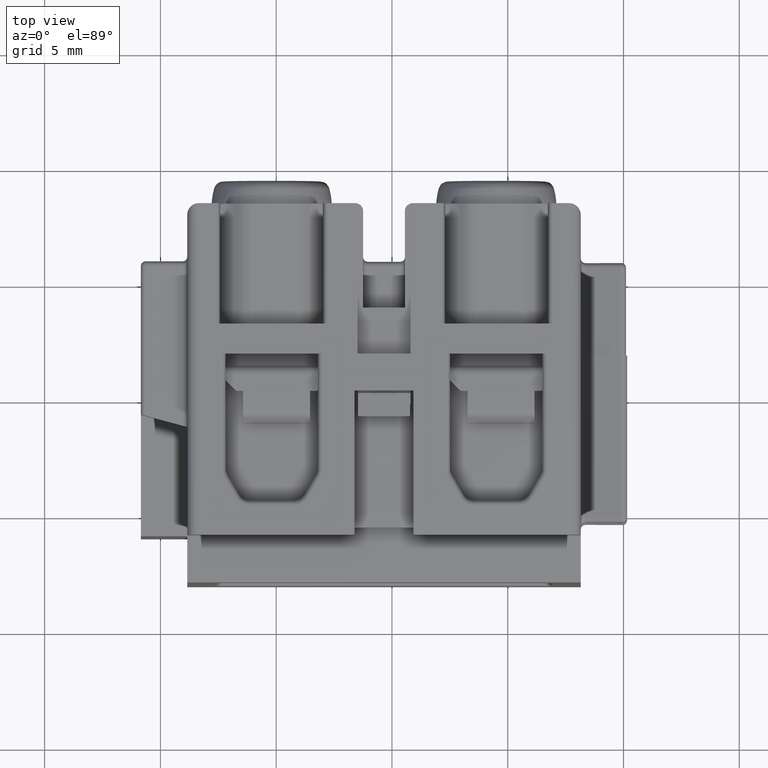
[diagram: clean part render]
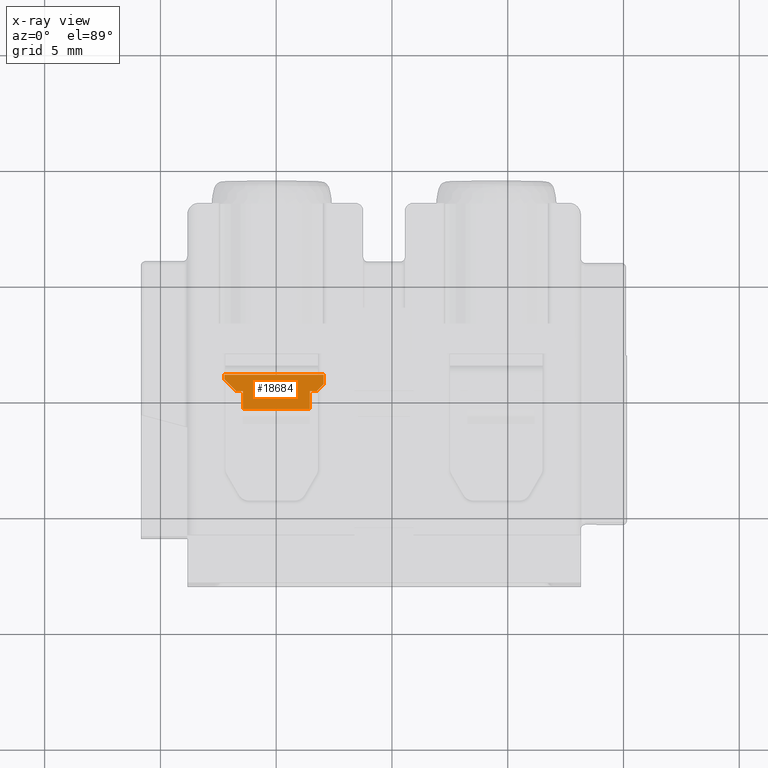
[diagram: x-ray — body ghosted, one internal face saturated and labeled with its STEP entity id]
A machine part, top view, then the same camera in x-ray: the body is ghosted and one INTERNAL B-rep face — a face not visible from any outside direction — is saturated and labeled: STEP entity #18684.
In plain terms, the highlighted planar face has unit normal (0, 0, 1).
Its self-contained STEP definition (entity closure, byte-faithful):
#4030 = ORIENTED_EDGE ( 'NONE', *, *, #18966, .F. ) ;
#4039 = ORIENTED_EDGE ( 'NONE', *, *, #18957, .F. ) ;
#4049 = ORIENTED_EDGE ( 'NONE', *, *, #18910, .T. ) ;
#4051 = ORIENTED_EDGE ( 'NONE', *, *, #19070, .F. ) ;
#4060 = ORIENTED_EDGE ( 'NONE', *, *, #18939, .F. ) ;
#4063 = ORIENTED_EDGE ( 'NONE', *, *, #18946, .F. ) ;
#4473 = AXIS2_PLACEMENT_3D ( 'NONE', #15441, #15443, #15463 ) ;
#4660 = VECTOR ( 'NONE', #5752, 1000.000000000000000 ) ;
#4717 = VECTOR ( 'NONE', #5856, 1000.000000000000000 ) ;
#4718 = VECTOR ( 'NONE', #5867, 1000.000000000000000 ) ;
#4720 = VECTOR ( 'NONE', #5885, 1000.000000000000000 ) ;
#4752 = VECTOR ( 'NONE', #5921, 1000.000000000000100 ) ;
#4763 = VECTOR ( 'NONE', #5836, 1000.000000000000000 ) ;
#4779 = VECTOR ( 'NONE', #5009, 1000.000000000000000 ) ;
#4816 = VECTOR ( 'NONE', #5951, 1000.000000000000100 ) ;
#4831 = VECTOR ( 'NONE', #6035, 1000.000000000000000 ) ;
#4832 = VECTOR ( 'NONE', #6037, 1000.000000000000000 ) ;
#5009 = DIRECTION ( 'NONE',  ( 0.0000000000000000000, -1.000000000000000000, 0.0000000000000000000 ) ) ;
#5749 = LINE ( 'NONE', #5757, #4660 ) ;
#5752 = DIRECTION ( 'NONE',  ( -1.000000000000000000, 0.0000000000000000000, 0.0000000000000000000 ) ) ;
#5757 = CARTESIAN_POINT ( 'NONE',  ( 17.05655536988780000, 34.46510758664594900, -3.122838019614685200 ) ) ;
#5811 = CARTESIAN_POINT ( 'NONE',  ( 17.05655536988780000, 35.24963753280820100, -3.122838019614540000 ) ) ;
#5815 = LINE ( 'NONE', #5811, #4763 ) ;
#5816 = CARTESIAN_POINT ( 'NONE',  ( 17.05655536988780000, 35.94963753280804800, -3.122838019614540000 ) ) ;
#5836 = DIRECTION ( 'NONE',  ( 1.000000000000000000, 0.0000000000000000000, 0.0000000000000000000 ) ) ;
#5844 = LINE ( 'NONE', #5816, #4720 ) ;
#5852 = LINE ( 'NONE', #5853, #4718 ) ;
#5853 = CARTESIAN_POINT ( 'NONE',  ( 12.75655536988781900, 35.94963753280804800, -3.122838019614540000 ) ) ;
#5856 = DIRECTION ( 'NONE',  ( 0.0000000000000000000, 1.000000000000000000, 0.0000000000000000000 ) ) ;
#5866 = CARTESIAN_POINT ( 'NONE',  ( 16.45655536988764900, 35.94963753280804800, -3.122838019614540000 ) ) ;
#5867 = DIRECTION ( 'NONE',  ( 0.0000000000000000000, -1.000000000000000000, 0.0000000000000000000 ) ) ;
#5868 = LINE ( 'NONE', #5877, #4752 ) ;
#5876 = LINE ( 'NONE', #5866, #4717 ) ;
#5877 = CARTESIAN_POINT ( 'NONE',  ( 14.80655536988799900, 33.69963753280819700, -3.122838019614540000 ) ) ;
#5885 = DIRECTION ( 'NONE',  ( -1.000000000000000000, 0.0000000000000000000, 0.0000000000000000000 ) ) ;
#5921 = DIRECTION ( 'NONE',  ( 0.7071067811865474600, -0.7071067811865474600, 0.0000000000000000000 ) ) ;
#5935 = LINE ( 'NONE', #5941, #4816 ) ;
#5941 = CARTESIAN_POINT ( 'NONE',  ( 17.25655536988764600, 35.74963753280825100, -3.122838019614540000 ) ) ;
#5951 = DIRECTION ( 'NONE',  ( 0.7071067811865474600, 0.7071067811865474600, 0.0000000000000000000 ) ) ;
#6000 = CARTESIAN_POINT ( 'NONE',  ( 17.05655536988780000, 35.24963753280830000, -3.122838019614650100 ) ) ;
#6013 = LINE ( 'NONE', #6000, #4831 ) ;
#6016 = LINE ( 'NONE', #6036, #4832 ) ;
#6035 = DIRECTION ( 'NONE',  ( 0.0000000000000000000, 1.000000000000000000, 0.0000000000000000000 ) ) ;
#6036 = CARTESIAN_POINT ( 'NONE',  ( 17.05655536988780000, 35.24963753280820100, -3.122838019614540000 ) ) ;
#6037 = DIRECTION ( 'NONE',  ( 1.000000000000000000, 0.0000000000000000000, 0.0000000000000000000 ) ) ;
#6045 = LINE ( 'NONE', #6047, #4779 ) ;
#6047 = CARTESIAN_POINT ( 'NONE',  ( 13.55655536988750000, 35.94963753280804800, -3.122838019614540000 ) ) ;
#10516 = EDGE_LOOP ( 'NONE', ( #4051, #4060, #4030, #4039, #11523, #11699, #11645, #11676, #4063, #4049 ) ) ;
#11523 = ORIENTED_EDGE ( 'NONE', *, *, #18941, .F. ) ;
#11645 = ORIENTED_EDGE ( 'NONE', *, *, #19003, .F. ) ;
#11676 = ORIENTED_EDGE ( 'NONE', *, *, #19056, .F. ) ;
#11699 = ORIENTED_EDGE ( 'NONE', *, *, #19055, .F. ) ;
#14701 = VERTEX_POINT ( 'NONE', #17797 ) ;
#14712 = VERTEX_POINT ( 'NONE', #17839 ) ;
#14738 = VERTEX_POINT ( 'NONE', #17846 ) ;
#14740 = VERTEX_POINT ( 'NONE', #17833 ) ;
#14747 = VERTEX_POINT ( 'NONE', #17818 ) ;
#14748 = VERTEX_POINT ( 'NONE', #17823 ) ;
#14750 = VERTEX_POINT ( 'NONE', #17848 ) ;
#14771 = VERTEX_POINT ( 'NONE', #17902 ) ;
#14775 = VERTEX_POINT ( 'NONE', #17879 ) ;
#14797 = VERTEX_POINT ( 'NONE', #17896 ) ;
#15433 = FACE_OUTER_BOUND ( 'NONE', #10516, .T. ) ;
#15441 = CARTESIAN_POINT ( 'NONE',  ( 17.05655536988780000, 35.94963753280804800, -3.122838019614540000 ) ) ;
#15443 = DIRECTION ( 'NONE',  ( 0.0000000000000000000, 0.0000000000000000000, 1.000000000000000000 ) ) ;
#15463 = DIRECTION ( 'NONE',  ( 1.000000000000000000, 0.0000000000000000000, 0.0000000000000000000 ) ) ;
#15473 = PLANE ( 'NONE',  #4473 ) ;
#17797 = CARTESIAN_POINT ( 'NONE',  ( 13.25655536988800000, 35.24963753280820100, -3.122838019614540000 ) ) ;
#17818 = CARTESIAN_POINT ( 'NONE',  ( 16.45655536988764900, 34.46510758664594900, -3.122838019614540000 ) ) ;
#17823 = CARTESIAN_POINT ( 'NONE',  ( 16.75655536988760400, 35.24963753280820100, -3.122838019614540000 ) ) ;
#17833 = CARTESIAN_POINT ( 'NONE',  ( 12.75655536988781900, 35.74963753280840000, -3.122838019614540000 ) ) ;
#17839 = CARTESIAN_POINT ( 'NONE',  ( 16.45655536988764900, 35.24963753280820100, -3.122838019614540000 ) ) ;
#17846 = CARTESIAN_POINT ( 'NONE',  ( 13.55655536988750000, 35.24963753280820100, -3.122838019614540000 ) ) ;
#17848 = CARTESIAN_POINT ( 'NONE',  ( 13.55655536988750000, 34.46510758664594900, -3.122838019614540000 ) ) ;
#17879 = CARTESIAN_POINT ( 'NONE',  ( 17.05655536988780000, 35.54963753280845400, -3.122838019614650100 ) ) ;
#17896 = CARTESIAN_POINT ( 'NONE',  ( 17.05655536988780000, 35.94963753280804800, -3.122838019614540000 ) ) ;
#17902 = CARTESIAN_POINT ( 'NONE',  ( 12.75655536988781900, 35.94963753280799800, -3.122838019614540000 ) ) ;
#18684 = ADVANCED_FACE ( 'NONE', ( #15433 ), #15473, .F. ) ;
#18910 = EDGE_CURVE ( 'NONE', #14747, #14750, #5749, .T. ) ;
#18939 = EDGE_CURVE ( 'NONE', #14701, #14738, #5815, .T. ) ;
#18941 = EDGE_CURVE ( 'NONE', #14797, #14771, #5844, .T. ) ;
#18946 = EDGE_CURVE ( 'NONE', #14747, #14712, #5876, .T. ) ;
#18957 = EDGE_CURVE ( 'NONE', #14771, #14740, #5852, .T. ) ;
#18966 = EDGE_CURVE ( 'NONE', #14740, #14701, #5868, .T. ) ;
#19003 = EDGE_CURVE ( 'NONE', #14748, #14775, #5935, .T. ) ;
#19055 = EDGE_CURVE ( 'NONE', #14775, #14797, #6013, .T. ) ;
#19056 = EDGE_CURVE ( 'NONE', #14712, #14748, #6016, .T. ) ;
#19070 = EDGE_CURVE ( 'NONE', #14738, #14750, #6045, .T. ) ;